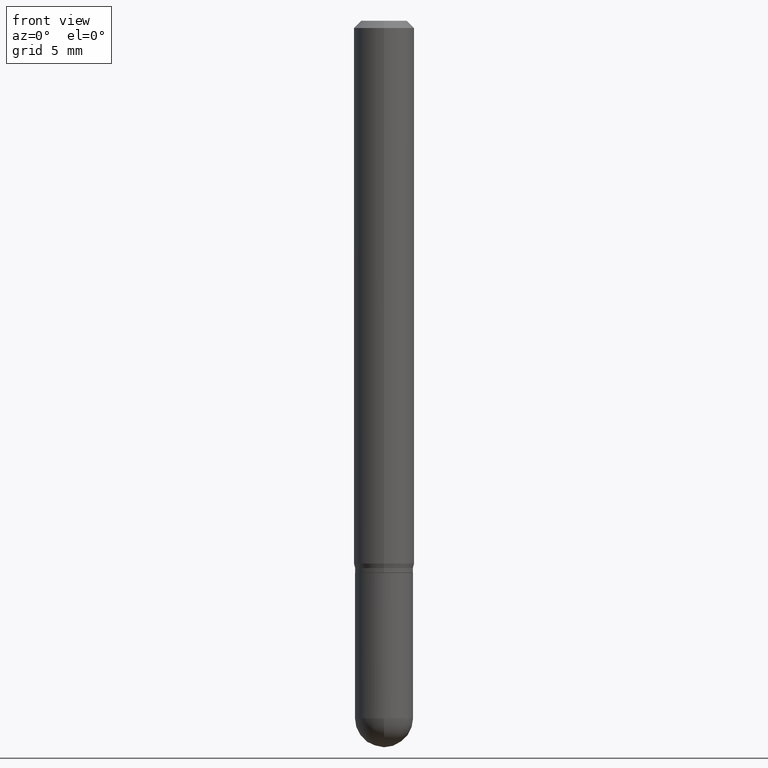
[diagram: clean part render]
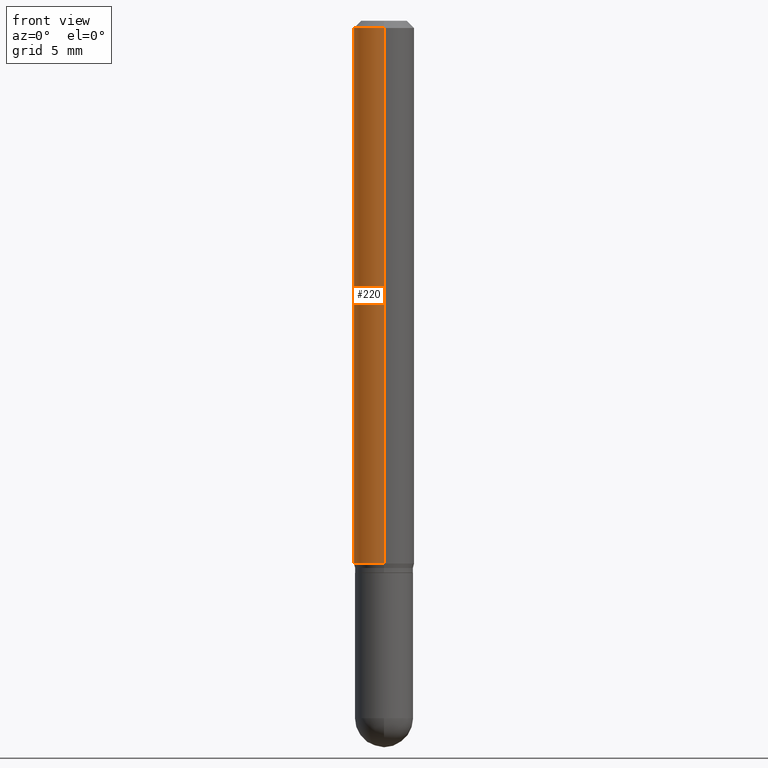
[diagram: same view with one face highlighted and labeled with its STEP entity id]
A machine part, front view. The second image highlights one B-rep face of the part: STEP entity #220.
In plain terms, the highlighted cylindrical surface (edge-blend (fillet) strip) has radius 1.5875 mm, axis along (-0, 0, 1).
Its self-contained STEP definition (entity closure, byte-faithful):
#24 = CIRCLE ( 'NONE', #65, 0.06250000000000000000 ) ;
#26 = CARTESIAN_POINT ( 'NONE',  ( 3.668161424578794447E-31, -5.237281846332025450E-17, -0.01500000000000032904 ) ) ;
#28 = CARTESIAN_POINT ( 'NONE',  ( 4.440892098500901277E-16, 0.06249999999999610728, -1.120669872981079340 ) ) ;
#39 = DIRECTION ( 'NONE',  ( -2.445440949719142932E-29, 3.491521230887940809E-15, 1.000000000000000000 ) ) ;
#51 = EDGE_CURVE ( 'NONE', #197, #436, #509, .T. ) ;
#57 = DIRECTION ( 'NONE',  ( -2.445440949719142652E-29, 3.491521230887940809E-15, 1.000000000000000000 ) ) ;
#62 = CARTESIAN_POINT ( 'NONE',  ( -4.364351673553912750E-16, -0.06250000000000005551, -0.01500000000000011047 ) ) ;
#65 = AXIS2_PLACEMENT_3D ( 'NONE', #26, #180, #489 ) ;
#118 = EDGE_CURVE ( 'NONE', #197, #343, #440, .T. ) ;
#125 = ORIENTED_EDGE ( 'NONE', *, *, #118, .T. ) ;
#128 = EDGE_CURVE ( 'NONE', #343, #320, #280, .T. ) ;
#129 = CARTESIAN_POINT ( 'NONE',  ( -4.364351673553916201E-16, -0.06250000000000000000, 2.182200769304962759E-16 ) ) ;
#139 = DIRECTION ( 'NONE',  ( -2.445440949719142652E-29, 3.491521230887940809E-15, 1.000000000000000000 ) ) ;
#140 = VECTOR ( 'NONE', #204, 39.37007874015748143 ) ;
#142 = FACE_OUTER_BOUND ( 'NONE', #187, .T. ) ;
#180 = DIRECTION ( 'NONE',  ( -2.445440949719142652E-29, 3.491521230887940809E-15, 1.000000000000000000 ) ) ;
#187 = EDGE_LOOP ( 'NONE', ( #429, #125, #399, #262 ) ) ;
#197 = VERTEX_POINT ( 'NONE', #28 ) ;
#200 = EDGE_CURVE ( 'NONE', #436, #320, #24, .T. ) ;
#204 = DIRECTION ( 'NONE',  ( -2.445440949719142932E-29, 3.491521230887940809E-15, 1.000000000000000000 ) ) ;
#212 = DIRECTION ( 'NONE',  ( -6.982962677686265922E-15, -1.000000000000000000, 4.370956789862821150E-15 ) ) ;
#220 = ADVANCED_FACE ( 'NONE', ( #142 ), #412, .T. ) ;
#260 = AXIS2_PLACEMENT_3D ( 'NONE', #484, #57, #212 ) ;
#262 = ORIENTED_EDGE ( 'NONE', *, *, #200, .F. ) ;
#280 = LINE ( 'NONE', #129, #140 ) ;
#293 = DIRECTION ( 'NONE',  ( -6.982962677686265922E-15, -1.000000000000000000, 3.491521230887940414E-15 ) ) ;
#320 = VERTEX_POINT ( 'NONE', #62 ) ;
#329 = CARTESIAN_POINT ( 'NONE',  ( -4.364351673553640100E-16, -0.06250000000000388578, -1.120669872981078674 ) ) ;
#343 = VERTEX_POINT ( 'NONE', #329 ) ;
#397 = CARTESIAN_POINT ( 'NONE',  ( 4.440892098500625669E-16, 0.06250000000000000000, -2.182200769304962759E-16 ) ) ;
#399 = ORIENTED_EDGE ( 'NONE', *, *, #128, .T. ) ;
#406 = CARTESIAN_POINT ( 'NONE',  ( 0.000000000000000000, 0.000000000000000000, 0.000000000000000000 ) ) ;
#408 = VECTOR ( 'NONE', #39, 39.37007874015748143 ) ;
#412 = CYLINDRICAL_SURFACE ( 'NONE', #473, 0.06250000000000000000 ) ;
#429 = ORIENTED_EDGE ( 'NONE', *, *, #51, .F. ) ;
#436 = VERTEX_POINT ( 'NONE', #466 ) ;
#440 = CIRCLE ( 'NONE', #260, 0.06250000000000000000 ) ;
#466 = CARTESIAN_POINT ( 'NONE',  ( 4.440892098500901277E-16, 0.06249999999999995143, -0.01500000000000054588 ) ) ;
#473 = AXIS2_PLACEMENT_3D ( 'NONE', #406, #139, #293 ) ;
#484 = CARTESIAN_POINT ( 'NONE',  ( 2.740531998504480438E-29, -3.912842654329929133E-15, -1.120669872981078896 ) ) ;
#489 = DIRECTION ( 'NONE',  ( -6.982962677686265922E-15, -1.000000000000000000, 3.483106191921935554E-15 ) ) ;
#509 = LINE ( 'NONE', #397, #408 ) ;